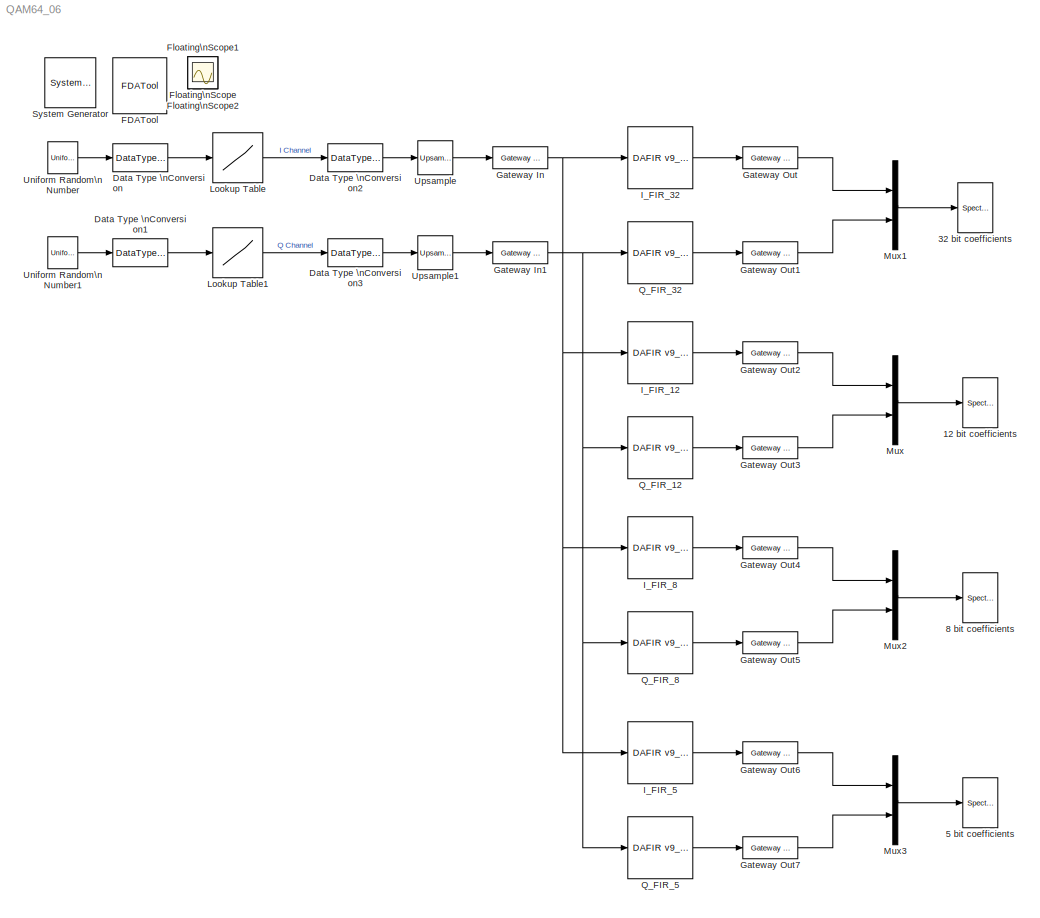
MODEL QAM64_06
KIND model
BLOCK [Reference]  System Generator  REF=xbsIndex_r4/ System Generator
  AttributesFormatString = System\\nGenerator
  FunctionWithSeparateData = off
  Ports = []
  RTWMemSecDataConstants = Inherit from model
  RTWMemSecDataInternal = Inherit from model
  RTWMemSecDataParameters = Inherit from model
  RTWMemSecFuncExecute = Inherit from model
  RTWMemSecFuncInitTerm = Inherit from model
  ShowPortLabels = FromPortIcon
  SourceBlock = xbsIndex_r4/ System Generator
  SourceType = Xilinx System Generator Block
  SystemSampleTime = -1
  Tag = genX
  UserData = DataTag0
  UserDataPersistent = on
  block_type = sysgen
  block_version = 9.2.01
  core_generation = According to Block Masks
  dbl_ovrd = According to Block Masks
  deprecated_control = off
  directory = ./netlist
  eval_field = 0
  has_advanced_control = 0
  incr_netlist = off
  infoedit = System Generator
  package = bg575
  part = xc2v1000
  run_coregen = off
  sg_icon_stat = 51,50,-1,-1,red,beige,0,07734
  sg_mask_display = fprintf('','COMMENT: begin icon graphics');\npatch([0 51 51 0 ],[0 0 50 50 ],[0.93 0.92 0.86]);\npatch([12 4 16 4 12 25 29 33 47 36 25 17 29 17 25 36 47 33 29 25 12 ],[5 13 25 37 45 45 41 45 45 34 45 37 25 13 5 16 5 5 9 5 5 ],[0.6 0.2 0.25]);\nplot([0 0 51 51 0 ],[0 50 50 0 0 ]);\nfprintf('','COMMENT: end icon graphics');\nfprintf('','COMMENT: begin icon text');\nfprintf('','COMMENT: end icon text...<+5ch>
  sggui_pos = -1,-1,-1,-1
  simulink_period = 1/112e6
  speed = -4
  synthesis_tool = XST
  sysclk_period = 100
  testbench = off
  trim_vbits = Everywhere in SubSystem
  xilinxfamily = Virtex2
BLOCK [Reference] 12 bit coefficients  REF=dspsnks4/Spectrum\nScope
  AxisGrid = on
  AxisLegend = off
  AxisProperties = off
  AxisZoom = off
  BufferSize = 1024
  DialogController = dspdialog.SpectrumScope
  DialogControllerArgs = DataTag1
  DisplayProperties = off
  Domain = Frequency
  FFTlength = 1024
  FigPos = get(0,'defaultfigureposition')
  FrameNumber = on
  FunctionWithSeparateData = off
  HorizSpan = 1
  InheritXIncr = off
  LineColors = [1 0 0]|[0 0 1]
  LineProperties = off
  Memory = off
  OpenScopeAtSimStart = on
  OpenScopeImmediately = off
  Overlap = 64
  Ports = [1]
  RTWMemSecDataConstants = Inherit from model
  RTWMemSecDataInternal = Inherit from model
  RTWMemSecDataParameters = Inherit from model
  RTWMemSecFuncExecute = Inherit from model
  RTWMemSecFuncInitTerm = Inherit from model
  RsSpecScope = 50
  ScopeProperties = on
  ShowPortLabels = none
  SourceBlock = dspsnks4/Spectrum\nScope
  SourceType = Spectrum Scope
  SystemSampleTime = -1
  UseBuffer = on
  XIncr = 1/112e6
  XLabel = Samples
  XLimit = Auto
  XMax = 1
  XMin = 0
  XRange = [0...Fs/2]
  XUnits = Hertz
  YLabel = Magnitude, dB
  YMax = 37.379435684992
  YMin = -70.9421156820398
  YUnits = dB
  betaSpecScope = 5
  inpFftLenInherit = on
  numAvg = 2
  winsampSpecScope = Periodic
  wintypeSpecScope = Hann
BLOCK [Reference] 32 bit coefficients  REF=dspsnks4/Spectrum\nScope
  AxisGrid = on
  AxisLegend = off
  AxisProperties = off
  AxisZoom = off
  BufferSize = 1024
  DialogController = dspdialog.SpectrumScope
  DialogControllerArgs = DataTag2
  DisplayProperties = off
  Domain = Frequency
  FFTlength = 1024
  FigPos = get(0,'defaultfigureposition')
  FrameNumber = on
  FunctionWithSeparateData = off
  HorizSpan = 1
  InheritXIncr = off
  LineColors = [1 0 0]|[0 0 1]
  LineProperties = off
  Memory = off
  OpenScopeAtSimStart = on
  OpenScopeImmediately = off
  Overlap = 64
  Ports = [1]
  RTWMemSecDataConstants = Inherit from model
  RTWMemSecDataInternal = Inherit from model
  RTWMemSecDataParameters = Inherit from model
  RTWMemSecFuncExecute = Inherit from model
  RTWMemSecFuncInitTerm = Inherit from model
  RsSpecScope = 50
  ScopeProperties = on
  ShowPortLabels = none
  SourceBlock = dspsnks4/Spectrum\nScope
  SourceType = Spectrum Scope
  SystemSampleTime = -1
  UseBuffer = on
  XIncr = 1/112e6
  XLabel = Samples
  XLimit = Auto
  XMax = 1
  XMin = 0
  XRange = [0...Fs/2]
  XUnits = Hertz
  YLabel = Magnitude, dB
  YMax = 37.379435684992
  YMin = -70.9421156820398
  YUnits = dB
  betaSpecScope = 5
  inpFftLenInherit = on
  numAvg = 2
  winsampSpecScope = Periodic
  wintypeSpecScope = Hann
BLOCK [Reference] 5 bit coefficients  REF=dspsnks4/Spectrum\nScope
  AxisGrid = on
  AxisLegend = off
  AxisProperties = off
  AxisZoom = off
  BufferSize = 1024
  DialogController = dspdialog.SpectrumScope
  DialogControllerArgs = DataTag3
  DisplayProperties = off
  Domain = Frequency
  FFTlength = 1024
  FigPos = get(0,'defaultfigureposition')
  FrameNumber = on
  FunctionWithSeparateData = off
  HorizSpan = 1
  InheritXIncr = off
  LineColors = [1 0 0]|[0 0 1]
  LineProperties = off
  Memory = off
  OpenScopeAtSimStart = on
  OpenScopeImmediately = off
  Overlap = 64
  Ports = [1]
  RTWMemSecDataConstants = Inherit from model
  RTWMemSecDataInternal = Inherit from model
  RTWMemSecDataParameters = Inherit from model
  RTWMemSecFuncExecute = Inherit from model
  RTWMemSecFuncInitTerm = Inherit from model
  RsSpecScope = 50
  ScopeProperties = on
  ShowPortLabels = none
  SourceBlock = dspsnks4/Spectrum\nScope
  SourceType = Spectrum Scope
  SystemSampleTime = -1
  UseBuffer = on
  XIncr = 1/112e6
  XLabel = Samples
  XLimit = Auto
  XMax = 1
  XMin = 0
  XRange = [0...Fs/2]
  XUnits = Hertz
  YLabel = Magnitude, dB
  YMax = 37.379435684992
  YMin = -70.9421156820398
  YUnits = dB
  betaSpecScope = 5
  inpFftLenInherit = on
  numAvg = 2
  winsampSpecScope = Periodic
  wintypeSpecScope = Hann
BLOCK [Reference] 8 bit coefficients  REF=dspsnks4/Spectrum\nScope
  AxisGrid = on
  AxisLegend = off
  AxisProperties = off
  AxisZoom = off
  BufferSize = 1024
  DialogController = dspdialog.SpectrumScope
  DialogControllerArgs = DataTag4
  DisplayProperties = off
  Domain = Frequency
  FFTlength = 1024
  FigPos = get(0,'defaultfigureposition')
  FrameNumber = on
  FunctionWithSeparateData = off
  HorizSpan = 1
  InheritXIncr = off
  LineColors = [1 0 0]|[0 0 1]
  LineProperties = off
  Memory = off
  OpenScopeAtSimStart = on
  OpenScopeImmediately = off
  Overlap = 64
  Ports = [1]
  RTWMemSecDataConstants = Inherit from model
  RTWMemSecDataInternal = Inherit from model
  RTWMemSecDataParameters = Inherit from model
  RTWMemSecFuncExecute = Inherit from model
  RTWMemSecFuncInitTerm = Inherit from model
  RsSpecScope = 50
  ScopeProperties = on
  ShowPortLabels = none
  SourceBlock = dspsnks4/Spectrum\nScope
  SourceType = Spectrum Scope
  SystemSampleTime = -1
  UseBuffer = on
  XIncr = 1/112e6
  XLabel = Samples
  XLimit = Auto
  XMax = 1
  XMin = 0
  XRange = [0...Fs/2]
  XUnits = Hertz
  YLabel = Magnitude, dB
  YMax = 37.379435684992
  YMin = -70.9421156820398
  YUnits = dB
  betaSpecScope = 5
  inpFftLenInherit = on
  numAvg = 2
  winsampSpecScope = Periodic
  wintypeSpecScope = Hann
BLOCK [DataTypeConversion] Data Type \nConversion
  OutDataType = uint(3)
  OutDataTypeMode = Specify via dialog
  RndMeth = Nearest
BLOCK [DataTypeConversion] Data Type \nConversion1
  OutDataType = uint(3)
  OutDataTypeMode = Specify via dialog
  RndMeth = Nearest
BLOCK [DataTypeConversion] Data Type \nConversion2
  OutDataType = sfix(8)
  OutDataTypeMode = Specify via dialog
BLOCK [DataTypeConversion] Data Type \nConversion3
  OutDataType = sfix(8)
  OutDataTypeMode = Specify via dialog
BLOCK [Reference] FDATool  REF=xbsIndex_r4/FDATool
  Ports = []
  ShowPortLabels = on
  SourceBlock = xbsIndex_r4/FDATool
  SourceType = Xilinx FDATool Interface Block
  UserData = DataTag5
  UserDataPersistent = on
  block_type = fdatool
  block_version = 9.2.01
  has_advanced_control = 0
  infoedit = FDATool
  sg_icon_stat = 54,56,-1,-1,blue,white,0,07734
  sg_mask_display = fprintf('','COMMENT: begin icon graphics');\npatch([0 54 54 0 ],[0 0 56 56 ],[0.98 0.96 0.92]);\npatch([13 4 17 4 13 27 31 35 50 38 26 18 32 18 26 38 50 35 31 27 13 ],[7 16 29 42 51 51 47 51 51 39 51 43 29 15 7 19 7 7 11 7 7 ],[0.77 0.82 0.91]);\nplot([0 0 54 54 0 ],[0 56 56 0 0 ]);\nfprintf('','COMMENT: end icon graphics');\nfprintf('','COMMENT: begin icon text');\nfprintf('','COMMENT: end icon t...<+56ch>
  sggui_pos = -1,-1,-1,-1
BLOCK [Scope] Floating\nScope
  DataFormat = StructureWithTime
  Floating = on
  IOType = viewer
  NumInputPorts = 1
  Ports = []
  SampleTime = 0
  YMax = 150
  YMin = -150
BLOCK [Scope] Floating\nScope1
  DataFormat = StructureWithTime
  Floating = on
  IOType = viewer
  NumInputPorts = 1
  Ports = []
  SampleTime = 0
BLOCK [Scope] Floating\nScope2
  DataFormat = StructureWithTime
  Floating = on
  IOType = viewer
  NumInputPorts = 1
  Ports = []
  SampleTime = 0
BLOCK [Reference] Gateway In  REF=xbsIndex_r4/Gateway In
  LOCs = {}
  Ports = [1, 1]
  SourceBlock = xbsIndex_r4/Gateway In
  SourceType = Xilinx Gateway In Block
  arith_type = Signed  (2's comp)
  bin_pt = 0
  block_type = gatewayin
  block_version = VER_STRING_GOES_HERE
  dbl_ovrd = off
  has_advanced_control = 0
  infoedit = Gateway in block.  Converts inputs of type Simulink integer, double and fixed point to  Xilinx fixed point type.<P><P>Hardware notes:  In hardware these blocks become top level input ports.
  locs_specified = off
  n_bits = 8
  overflow = Wrap
  period = 1/112e6
  quantization = Truncate
  sg_icon_stat = 55,22,1,1,white,yellow,0,4bb76ffd
  sg_mask_display = fprintf('','COMMENT: begin icon graphics ');\npatch([0 55 55 0 ],[0 0 22 22 ],[0.95 0.93 0.65]);\npatch([22 18 23 18 22 28 30 32 38 33 28 25 31 25 28 33 38 32 30 28 22 ],[2 6 11 16 20 20 18 20 20 15 20 17 11 5 2 7 2 2 4 2 2 ],[0.98 0.96 0.92]);\nplot([0 0 55 55 0 ],[0 22 22 0 0 ]);\nfprintf('','COMMENT: end icon graphics');\n\nfprintf('','COMMENT: begin icon text ');\ncolor('black');port_label('in...<+220ch>
  sggui_pos = -1,-1,-1,-1
  timing_constraint = None
  xl_area = [0, 0, 0, 0, 0, 0, 0]
  xl_use_area = off
BLOCK [Reference] Gateway In1  REF=xbsIndex_r4/Gateway In
  LOCs = {}
  Ports = [1, 1]
  SourceBlock = xbsIndex_r4/Gateway In
  SourceType = Xilinx Gateway In Block
  arith_type = Signed  (2's comp)
  bin_pt = 0
  block_type = gatewayin
  block_version = VER_STRING_GOES_HERE
  dbl_ovrd = off
  has_advanced_control = 0
  infoedit = Gateway in block.  Converts inputs of type Simulink integer, double and fixed point to  Xilinx fixed point type.<P><P>Hardware notes:  In hardware these blocks become top level input ports.
  locs_specified = off
  n_bits = 8
  overflow = Wrap
  period = 1/112e6
  quantization = Truncate
  sg_icon_stat = 55,22,1,1,white,yellow,0,4bb76ffd
  sg_mask_display = fprintf('','COMMENT: begin icon graphics ');\npatch([0 55 55 0 ],[0 0 22 22 ],[0.95 0.93 0.65]);\npatch([22 18 23 18 22 28 30 32 38 33 28 25 31 25 28 33 38 32 30 28 22 ],[2 6 11 16 20 20 18 20 20 15 20 17 11 5 2 7 2 2 4 2 2 ],[0.98 0.96 0.92]);\nplot([0 0 55 55 0 ],[0 22 22 0 0 ]);\nfprintf('','COMMENT: end icon graphics');\n\nfprintf('','COMMENT: begin icon text ');\ncolor('black');port_label('in...<+220ch>
  sggui_pos = -1,-1,-1,-1
  timing_constraint = None
  xl_area = [0, 0, 0, 0, 0, 0, 0]
  xl_use_area = off
BLOCK [Reference] Gateway Out  REF=xbsIndex_r4/Gateway Out
  LOCs = {}
  Ports = [1, 1]
  SourceBlock = xbsIndex_r4/Gateway Out
  SourceType = Xilinx Gateway Out Block
  block_type = gatewayout
  block_version = VER_STRING_GOES_HERE
  has_advanced_control = 0
  hdl_port = off
  infoedit = Gateway out block.  Converts Xilinx fixed point inputs into ouputs of type Simulink integer, double, or fixed point.<P><P>Hardware notes:  In hardware these blocks become top level output ports or are discarded, depending on how they are configured.  <repeated x8 — deduplicated; at blocks: Gateway Out, Gateway Out1, Gateway Out2, Gateway Out3, Gateway Out4, Gateway Out5, Gateway Out6, Gateway Out7>
  locs_specified = off
  sg_icon_stat = 55,22,1,1,white,grey,0,422cd57d
  sg_mask_display = fprintf('','COMMENT: begin icon graphics ');\npatch([0 55 55 0 ],[0 0 22 22 ],[0.88 0.88 0.88]);\npatch([22 18 23 18 22 28 30 32 38 33 28 25 31 25 28 33 38 32 30 28 22 ],[2 6 11 16 20 20 18 20 20 15 20 17 11 5 2 7 2 2 4 2 2 ],[0.98 0.96 0.92]);\nplot([0 0 55 55 0 ],[0 22 22 0 0 ]);\nfprintf('','COMMENT: end icon graphics');\n\nfprintf('','COMMENT: begin icon text ');\ncolor('black');port_label('in...<+217ch>  <repeated x8 — deduplicated; at blocks: Gateway Out, Gateway Out1, Gateway Out2, Gateway Out3, Gateway Out4, Gateway Out5, Gateway Out6, Gateway Out7>
  sggui_pos = -1,-1,-1,-1
  timing_constraint = None
  xl_area = [0, 0, 0, 0, 0, 0, 0]
  xl_use_area = off
BLOCK [Reference] Gateway Out1  REF=xbsIndex_r4/Gateway Out
  LOCs = {}
  Ports = [1, 1]
  SourceBlock = xbsIndex_r4/Gateway Out
  SourceType = Xilinx Gateway Out Block
  block_type = gatewayout
  block_version = VER_STRING_GOES_HERE
  has_advanced_control = 0
  hdl_port = off
  locs_specified = off
  sg_icon_stat = 55,22,1,1,white,grey,0,422cd57d
  sggui_pos = -1,-1,-1,-1
  timing_constraint = None
  xl_area = [0, 0, 0, 0, 0, 0, 0]
  xl_use_area = off
BLOCK [Reference] Gateway Out2  REF=xbsIndex_r4/Gateway Out
  LOCs = {}
  Ports = [1, 1]
  SourceBlock = xbsIndex_r4/Gateway Out
  SourceType = Xilinx Gateway Out Block
  block_type = gatewayout
  block_version = VER_STRING_GOES_HERE
  has_advanced_control = 0
  hdl_port = off
  locs_specified = off
  sg_icon_stat = 55,22,1,1,white,grey,0,422cd57d
  sggui_pos = -1,-1,-1,-1
  timing_constraint = None
  xl_area = [0, 0, 0, 0, 0, 0, 0]
  xl_use_area = off
BLOCK [Reference] Gateway Out3  REF=xbsIndex_r4/Gateway Out
  LOCs = {}
  Ports = [1, 1]
  SourceBlock = xbsIndex_r4/Gateway Out
  SourceType = Xilinx Gateway Out Block
  block_type = gatewayout
  block_version = VER_STRING_GOES_HERE
  has_advanced_control = 0
  hdl_port = off
  locs_specified = off
  sg_icon_stat = 55,22,1,1,white,grey,0,422cd57d
  sggui_pos = -1,-1,-1,-1
  timing_constraint = None
  xl_area = [0, 0, 0, 0, 0, 0, 0]
  xl_use_area = off
BLOCK [Reference] Gateway Out4  REF=xbsIndex_r4/Gateway Out
  LOCs = {}
  Ports = [1, 1]
  SourceBlock = xbsIndex_r4/Gateway Out
  SourceType = Xilinx Gateway Out Block
  block_type = gatewayout
  block_version = VER_STRING_GOES_HERE
  has_advanced_control = 0
  hdl_port = off
  locs_specified = off
  sg_icon_stat = 55,22,1,1,white,grey,0,422cd57d
  sggui_pos = -1,-1,-1,-1
  timing_constraint = None
  xl_area = [0, 0, 0, 0, 0, 0, 0]
  xl_use_area = off
BLOCK [Reference] Gateway Out5  REF=xbsIndex_r4/Gateway Out
  LOCs = {}
  Ports = [1, 1]
  SourceBlock = xbsIndex_r4/Gateway Out
  SourceType = Xilinx Gateway Out Block
  block_type = gatewayout
  block_version = VER_STRING_GOES_HERE
  has_advanced_control = 0
  hdl_port = off
  locs_specified = off
  sg_icon_stat = 55,22,1,1,white,grey,0,422cd57d
  sggui_pos = -1,-1,-1,-1
  timing_constraint = None
  xl_area = [0, 0, 0, 0, 0, 0, 0]
  xl_use_area = off
BLOCK [Reference] Gateway Out6  REF=xbsIndex_r4/Gateway Out
  LOCs = {}
  Ports = [1, 1]
  SourceBlock = xbsIndex_r4/Gateway Out
  SourceType = Xilinx Gateway Out Block
  block_type = gatewayout
  block_version = VER_STRING_GOES_HERE
  has_advanced_control = 0
  hdl_port = off
  locs_specified = off
  sg_icon_stat = 55,22,1,1,white,grey,0,422cd57d
  sggui_pos = -1,-1,-1,-1
  timing_constraint = None
  xl_area = [0, 0, 0, 0, 0, 0, 0]
  xl_use_area = off
BLOCK [Reference] Gateway Out7  REF=xbsIndex_r4/Gateway Out
  LOCs = {}
  Ports = [1, 1]
  SourceBlock = xbsIndex_r4/Gateway Out
  SourceType = Xilinx Gateway Out Block
  block_type = gatewayout
  block_version = VER_STRING_GOES_HERE
  has_advanced_control = 0
  hdl_port = off
  locs_specified = off
  sg_icon_stat = 55,22,1,1,white,grey,0,422cd57d
  sggui_pos = -1,-1,-1,-1
  timing_constraint = None
  xl_area = [0, 0, 0, 0, 0, 0, 0]
  xl_use_area = off
BLOCK [Reference] I_FIR_12  REF=xbsIndex_r4/DAFIR v9_0 
  Ports = [1, 1]
  SourceBlock = xbsIndex_r4/DAFIR v9_0
  SourceType = Xilinx Finite Impulse Response Filter Block
  block_type = fir
  block_version = VER_STRING_GOES_HERE
  coef = xlfda_numerator('FDATool')
  coef_bin_pt = 11
  coef_n_bits = 12
  dbl_ovrd = off
  explicit_period = off
  has_advanced_control = 0
  infoedit = Hardware notes: Implemented using distributed arithmetic (DA).  The hardware over sampling rate determines the degree of parallelism.  A rate of one produces a fully parallel DA filter.  A rate of n (resp., n+1) for an n-bit input signal produces a fully serial implementation for a non-symmetric (resp., symmetric) impulse response.  Intermediate values produce implementations with intermediate lev...<+19ch>  <repeated x8 — deduplicated; at blocks: I_FIR_12, I_FIR_32, I_FIR_5, I_FIR_8, Q_FIR_12, Q_FIR_32, Q_FIR_5, Q_FIR_8>
  latency = 1
  num_channels = 1
  over_sample = 1
  period = 1
  polyphase_behavior = Single Rate:  sample in - sample out
  reload = off
  rst = off
  serial_input = off
  sg_icon_stat = 65,62,1,1,white,blue,0,1c2ae784
  sg_mask_display = fprintf('','COMMENT: begin icon graphics ');\npatch([0 65 65 0 ],[0 0 62 62 ],[0.77 0.82 0.91]);\npatch([16 6 21 6 16 32 36 40 58 44 31 21 35 21 31 44 58 40 36 32 16 ],[7 17 32 47 57 57 53 57 57 43 56 46 32 18 8 21 7 7 11 7 7 ],[0.98 0.96 0.92]);\nplot([0 0 65 65 0 ],[0 62 62 0 0 ]);\nfprintf('','COMMENT: end icon graphics');\n\nfprintf('','COMMENT: begin icon text ');\ncolor('black');port_label('...<+218ch>  <repeated x8 — deduplicated; at blocks: I_FIR_12, I_FIR_32, I_FIR_5, I_FIR_8, Q_FIR_12, Q_FIR_32, Q_FIR_5, Q_FIR_8>
  sggui_pos = 20,20,356,418
  structure = Inferred from Coefficients
  use_isim = 0
  valids = off
  xl_area = [0, 0, 0, 0, 0, 0, 0]
  xl_use_area = off
BLOCK [Reference] I_FIR_32  REF=xbsIndex_r4/DAFIR v9_0 
  Ports = [1, 1]
  SourceBlock = xbsIndex_r4/DAFIR v9_0
  SourceType = Xilinx Finite Impulse Response Filter Block
  block_type = fir
  block_version = VER_STRING_GOES_HERE
  coef = xlfda_numerator('FDATool')
  coef_bin_pt = 31
  coef_n_bits = 32
  dbl_ovrd = on
  explicit_period = off
  has_advanced_control = 0
  latency = 1
  num_channels = 1
  over_sample = 1
  period = 1
  polyphase_behavior = Single Rate:  sample in - sample out
  reload = off
  rst = off
  serial_input = off
  sg_icon_stat = 65,62,1,1,white,blue,0,1c2ae784
  sggui_pos = 20,20,356,418
  structure = Inferred from Coefficients
  use_isim = 0
  valids = off
  xl_area = [0, 0, 0, 0, 0, 0, 0]
  xl_use_area = off
BLOCK [Reference] I_FIR_5  REF=xbsIndex_r4/DAFIR v9_0 
  Ports = [1, 1]
  SourceBlock = xbsIndex_r4/DAFIR v9_0
  SourceType = Xilinx Finite Impulse Response Filter Block
  block_type = fir
  block_version = VER_STRING_GOES_HERE
  coef = xlfda_numerator('FDATool')
  coef_bin_pt = 4
  coef_n_bits = 5
  dbl_ovrd = off
  explicit_period = off
  has_advanced_control = 0
  latency = 1
  num_channels = 1
  over_sample = 1
  period = 1
  polyphase_behavior = Single Rate:  sample in - sample out
  reload = off
  rst = off
  serial_input = off
  sg_icon_stat = 65,62,1,1,white,blue,0,1c2ae784
  sggui_pos = 20,20,356,418
  structure = Inferred from Coefficients
  use_isim = 0
  valids = off
  xl_area = [0, 0, 0, 0, 0, 0, 0]
  xl_use_area = off
BLOCK [Reference] I_FIR_8  REF=xbsIndex_r4/DAFIR v9_0 
  Ports = [1, 1]
  SourceBlock = xbsIndex_r4/DAFIR v9_0
  SourceType = Xilinx Finite Impulse Response Filter Block
  block_type = fir
  block_version = VER_STRING_GOES_HERE
  coef = xlfda_numerator('FDATool')
  coef_bin_pt = 7
  coef_n_bits = 8
  dbl_ovrd = off
  explicit_period = off
  has_advanced_control = 0
  latency = 1
  num_channels = 1
  over_sample = 1
  period = 1
  polyphase_behavior = Single Rate:  sample in - sample out
  reload = off
  rst = off
  serial_input = off
  sg_icon_stat = 65,62,1,1,white,blue,0,1c2ae784
  sggui_pos = 20,20,356,418
  structure = Inferred from Coefficients
  use_isim = 0
  valids = off
  xl_area = [0, 0, 0, 0, 0, 0, 0]
  xl_use_area = off
BLOCK [Lookup] Lookup Table
  InputValues = [0 1 2 3 4 5 6 7]
  OutDataType = float('double')
  OutDataTypeMode = Specify via dialog
  OutputValues = [127 90.71428571 54.42857143 18.14285714 -18.14285714 -54.42857143 -90.71428571 -127]
  SaturateOnIntegerOverflow = off
BLOCK [Lookup] Lookup Table1
  InputValues = [0 1 2 3 4 5 6 7]
  OutDataType = float('double')
  OutDataTypeMode = Specify via dialog
  OutputValues = [127 90.71428571 54.42857143 18.14285714 -18.14285714 -54.42857143 -90.71428571 -127]
  SaturateOnIntegerOverflow = off
BLOCK [Mux] Mux
  DisplayOption = bar
  Inputs = 2
  Ports = [2, 1]
BLOCK [Mux] Mux1
  DisplayOption = bar
  Inputs = 2
  Ports = [2, 1]
BLOCK [Mux] Mux2
  DisplayOption = bar
  Inputs = 2
  Ports = [2, 1]
BLOCK [Mux] Mux3
  DisplayOption = bar
  Inputs = 2
  Ports = [2, 1]
BLOCK [Reference] Q_FIR_12  REF=xbsIndex_r4/DAFIR v9_0 
  Ports = [1, 1]
  SourceBlock = xbsIndex_r4/DAFIR v9_0
  SourceType = Xilinx Finite Impulse Response Filter Block
  block_type = fir
  block_version = VER_STRING_GOES_HERE
  coef = xlfda_numerator('FDATool')
  coef_bin_pt = 11
  coef_n_bits = 12
  dbl_ovrd = off
  explicit_period = off
  has_advanced_control = 0
  latency = 1
  num_channels = 1
  over_sample = 1
  period = 1
  polyphase_behavior = Single Rate:  sample in - sample out
  reload = off
  rst = off
  serial_input = off
  sg_icon_stat = 65,62,1,1,white,blue,0,1c2ae784
  sggui_pos = 20,20,356,418
  structure = Inferred from Coefficients
  use_isim = 0
  valids = off
  xl_area = [0, 0, 0, 0, 0, 0, 0]
  xl_use_area = off
BLOCK [Reference] Q_FIR_32  REF=xbsIndex_r4/DAFIR v9_0 
  Ports = [1, 1]
  SourceBlock = xbsIndex_r4/DAFIR v9_0
  SourceType = Xilinx Finite Impulse Response Filter Block
  block_type = fir
  block_version = VER_STRING_GOES_HERE
  coef = xlfda_numerator('FDATool')
  coef_bin_pt = 31
  coef_n_bits = 32
  dbl_ovrd = on
  explicit_period = off
  has_advanced_control = 0
  latency = 1
  num_channels = 1
  over_sample = 1
  period = 1
  polyphase_behavior = Single Rate:  sample in - sample out
  reload = off
  rst = off
  serial_input = off
  sg_icon_stat = 65,62,1,1,white,blue,0,1c2ae784
  sggui_pos = 20,20,356,418
  structure = Inferred from Coefficients
  use_isim = 0
  valids = off
  xl_area = [0, 0, 0, 0, 0, 0, 0]
  xl_use_area = off
BLOCK [Reference] Q_FIR_5  REF=xbsIndex_r4/DAFIR v9_0 
  Ports = [1, 1]
  SourceBlock = xbsIndex_r4/DAFIR v9_0
  SourceType = Xilinx Finite Impulse Response Filter Block
  block_type = fir
  block_version = VER_STRING_GOES_HERE
  coef = xlfda_numerator('FDATool')
  coef_bin_pt = 4
  coef_n_bits = 5
  dbl_ovrd = off
  explicit_period = off
  has_advanced_control = 0
  latency = 1
  num_channels = 1
  over_sample = 1
  period = 1
  polyphase_behavior = Single Rate:  sample in - sample out
  reload = off
  rst = off
  serial_input = off
  sg_icon_stat = 65,62,1,1,white,blue,0,1c2ae784
  sggui_pos = -1,-1,-1,-1
  structure = Inferred from Coefficients
  use_isim = 0
  valids = off
  xl_area = [0, 0, 0, 0, 0, 0, 0]
  xl_use_area = off
BLOCK [Reference] Q_FIR_8  REF=xbsIndex_r4/DAFIR v9_0 
  Ports = [1, 1]
  SourceBlock = xbsIndex_r4/DAFIR v9_0
  SourceType = Xilinx Finite Impulse Response Filter Block
  block_type = fir
  block_version = VER_STRING_GOES_HERE
  coef = xlfda_numerator('FDATool')
  coef_bin_pt = 7
  coef_n_bits = 8
  dbl_ovrd = off
  explicit_period = off
  has_advanced_control = 0
  latency = 1
  num_channels = 1
  over_sample = 1
  period = 1
  polyphase_behavior = Single Rate:  sample in - sample out
  reload = off
  rst = off
  serial_input = off
  sg_icon_stat = 65,62,1,1,white,blue,0,1c2ae784
  sggui_pos = -1,-1,-1,-1
  structure = Inferred from Coefficients
  use_isim = 0
  valids = off
  xl_area = [0, 0, 0, 0, 0, 0, 0]
  xl_use_area = off
BLOCK [UniformRandomNumber] Uniform Random\nNumber
  Maximum = 7
  Minimum = 0
  SampleTime = 1/28e6
BLOCK [UniformRandomNumber] Uniform Random\nNumber1
  Maximum = 7
  Minimum = 0
  SampleTime = 1/28e6
  Seed = 1
BLOCK [Reference] Upsample  REF=dspsigops/Upsample
  N = 4
  Ports = [1, 1]
  SourceBlock = dspsigops/Upsample
  SourceType = Upsample
  ic = 0
  mode = Maintain input frame size
  phase = 0
BLOCK [Reference] Upsample1  REF=dspsigops/Upsample
  N = 4
  Ports = [1, 1]
  SourceBlock = dspsigops/Upsample
  SourceType = Upsample
  ic = 0
  mode = Maintain input frame size
  phase = 0
LINE Data Type \nConversion1:1 -> Lookup Table1:1
LINE Data Type \nConversion2:1 -> Upsample:1
LINE Data Type \nConversion3:1 -> Upsample1:1
LINE Data Type \nConversion:1 -> Lookup Table:1
NET Gateway In1:1 -> Q_FIR_12:1, Q_FIR_32:1, Q_FIR_5:1, Q_FIR_8:1
NET Gateway In:1 -> I_FIR_12:1, I_FIR_32:1, I_FIR_5:1, I_FIR_8:1
LINE Gateway Out1:1 -> Mux1:2
LINE Gateway Out2:1 -> Mux:1
LINE Gateway Out3:1 -> Mux:2
LINE Gateway Out4:1 -> Mux2:1
LINE Gateway Out5:1 -> Mux2:2
LINE Gateway Out6:1 -> Mux3:1
LINE Gateway Out7:1 -> Mux3:2
LINE Gateway Out:1 -> Mux1:1
LINE I_FIR_12:1 -> Gateway Out2:1
LINE I_FIR_32:1 -> Gateway Out:1
LINE I_FIR_5:1 -> Gateway Out6:1
LINE I_FIR_8:1 -> Gateway Out4:1
LINE Lookup Table1:1 -> Data Type \nConversion3:1
LINE Lookup Table:1 -> Data Type \nConversion2:1
LINE Mux1:1 -> 32 bit coefficients:1
LINE Mux2:1 -> 8 bit coefficients:1
LINE Mux3:1 -> 5 bit coefficients:1
LINE Mux:1 -> 12 bit coefficients:1
LINE Q_FIR_12:1 -> Gateway Out3:1
LINE Q_FIR_32:1 -> Gateway Out1:1
LINE Q_FIR_5:1 -> Gateway Out7:1
LINE Q_FIR_8:1 -> Gateway Out5:1
LINE Uniform Random\nNumber1:1 -> Data Type \nConversion1:1
LINE Uniform Random\nNumber:1 -> Data Type \nConversion:1
LINE Upsample1:1 -> Gateway In1:1
LINE Upsample:1 -> Gateway In:1
note: NET lines group one-source signal fan-out (src -> all destinations, sorted); 1:1 wires keep LINE
